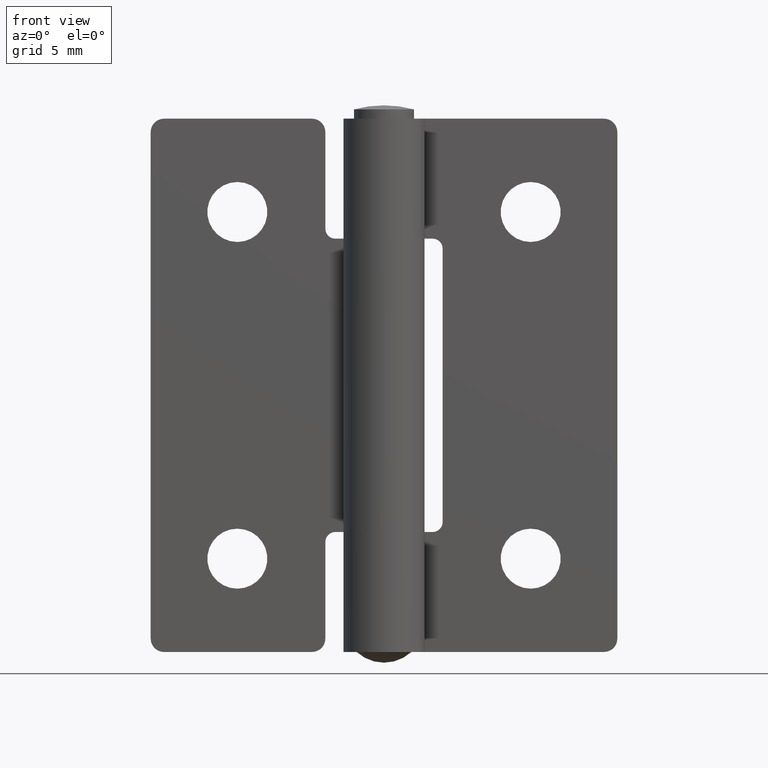
[diagram: clean part render]
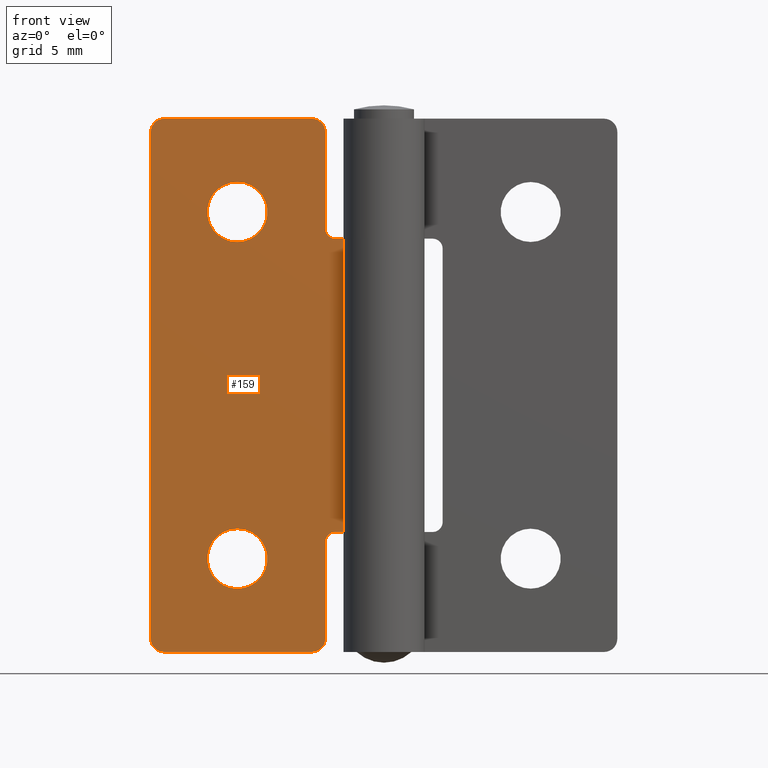
[diagram: same view with one face highlighted and labeled with its STEP entity id]
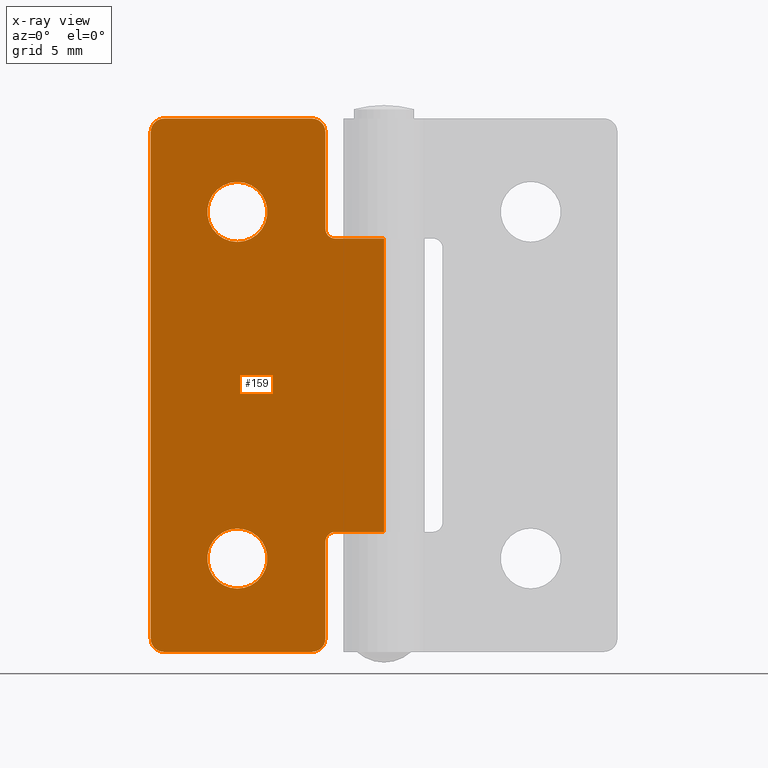
[diagram: x-ray of the same camera — body ghosted, the highlighted face saturated]
A machine part, front view. The second image highlights one B-rep face of the part: STEP entity #159.
The next image is the same camera in x-ray: the body ghosted, the highlighted face saturated — about 0% of this face is hidden behind the body in this view.
In plain terms, the highlighted planar face has unit normal (0, 1, 0).
Its self-contained STEP definition (entity closure, byte-faithful):
#159=ADVANCED_FACE('',(#309,#310,#311),#308,.F.);
#308=PLANE('',#841);
#309=FACE_OUTER_BOUND('',#842,.T.);
#310=FACE_BOUND('',#843,.T.);
#311=FACE_BOUND('',#844,.T.);
#838=CARTESIAN_POINT('',(-4.19922028826E+01,1.55000000000E+00,-3.19999963019E+00));
#839=DIRECTION('',(0.00000000000E+00,1.00000000000E+00,-0.00000000000E+00));
#840=DIRECTION('',(0.00000000000E+00,0.00000000000E+00,1.00000000000E+00));
#841=AXIS2_PLACEMENT_3D('',#838,#839,#840);
#842=EDGE_LOOP('',(#1117,#1118,#1119,#1120,#1121,#1122,#1123,#1124,#1125,#1126,#1127,#1128,#1129,#1130));
#843=EDGE_LOOP('',(#1131,#1132));
#844=EDGE_LOOP('',(#1133,#1134));
#1117=ORIENTED_EDGE('',*,*,#1393,.F.);
#1118=ORIENTED_EDGE('',*,*,#1394,.T.);
#1119=ORIENTED_EDGE('',*,*,#1395,.F.);
#1120=ORIENTED_EDGE('',*,*,#1396,.F.);
#1121=ORIENTED_EDGE('',*,*,#1397,.F.);
#1122=ORIENTED_EDGE('',*,*,#1398,.F.);
#1123=ORIENTED_EDGE('',*,*,#1399,.F.);
#1124=ORIENTED_EDGE('',*,*,#1400,.F.);
#1125=ORIENTED_EDGE('',*,*,#1401,.T.);
#1126=ORIENTED_EDGE('',*,*,#1402,.F.);
#1127=ORIENTED_EDGE('',*,*,#1403,.T.);
#1128=ORIENTED_EDGE('',*,*,#1404,.F.);
#1129=ORIENTED_EDGE('',*,*,#1405,.T.);
#1130=ORIENTED_EDGE('',*,*,#1406,.F.);
#1131=ORIENTED_EDGE('',*,*,#1407,.T.);
#1132=ORIENTED_EDGE('',*,*,#1408,.T.);
#1133=ORIENTED_EDGE('',*,*,#1409,.T.);
#1134=ORIENTED_EDGE('',*,*,#1410,.T.);
#1393=EDGE_CURVE('',#1642,#1643,#1644,.T.);
#1394=EDGE_CURVE('',#1642,#1650,#1651,.T.);
#1395=EDGE_CURVE('',#1657,#1650,#1658,.T.);
#1396=EDGE_CURVE('',#1664,#1657,#1665,.T.);
#1397=EDGE_CURVE('',#1671,#1664,#1672,.T.);
#1398=EDGE_CURVE('',#1678,#1671,#1679,.T.);
#1399=EDGE_CURVE('',#1685,#1678,#1686,.T.);
#1400=EDGE_CURVE('',#1692,#1685,#1693,.T.);
#1401=EDGE_CURVE('',#1692,#1699,#1700,.T.);
#1402=EDGE_CURVE('',#1706,#1699,#1707,.T.);
#1403=EDGE_CURVE('',#1706,#1713,#1714,.T.);
#1404=EDGE_CURVE('',#1720,#1713,#1721,.T.);
#1405=EDGE_CURVE('',#1720,#1727,#1728,.T.);
#1406=EDGE_CURVE('',#1643,#1727,#1734,.T.);
#1407=EDGE_CURVE('',#1740,#1741,#1742,.T.);
#1408=EDGE_CURVE('',#1741,#1740,#1748,.T.);
#1409=EDGE_CURVE('',#1754,#1755,#1756,.T.);
#1410=EDGE_CURVE('',#1755,#1754,#1762,.T.);
#1642=VERTEX_POINT('',#2574);
#1643=VERTEX_POINT('',#2575);
#1644=CIRCLE('',#2579,1.00000000000E+00);
#1650=VERTEX_POINT('',#2580);
#1651=LINE('',#2581,#2582);
#1657=VERTEX_POINT('',#2584);
#1658=CIRCLE('',#2588,1.00000000000E+00);
#1664=VERTEX_POINT('',#2589);
#1665=LINE('',#2590,#2591);
#1671=VERTEX_POINT('',#2593);
#1672=CIRCLE('',#2597,1.00000000000E+00);
#1678=VERTEX_POINT('',#2598);
#1679=LINE('',#2599,#2600);
#1685=VERTEX_POINT('',#2602);
#1686=CIRCLE('',#2606,1.00000000000E+00);
#1692=VERTEX_POINT('',#2607);
#1693=LINE('',#2608,#2609);
#1699=VERTEX_POINT('',#2611);
#1700=CIRCLE('',#2615,7.50000000000E-01);
#1706=VERTEX_POINT('',#2616);
#1707=LINE('',#2617,#2618);
#1713=VERTEX_POINT('',#2620);
#1714=LINE('',#2621,#2622);
#1720=VERTEX_POINT('',#2624);
#1721=LINE('',#2625,#2626);
#1727=VERTEX_POINT('',#2628);
#1728=CIRCLE('',#2632,7.50000000000E-01);
#1734=LINE('',#2633,#2634);
#1740=VERTEX_POINT('',#2636);
#1741=VERTEX_POINT('',#2637);
#1742=CIRCLE('',#2641,2.25000000000E+00);
#1748=CIRCLE('',#2645,2.25000000000E+00);
#1754=VERTEX_POINT('',#2646);
#1755=VERTEX_POINT('',#2647);
#1756=CIRCLE('',#2651,2.25000000000E+00);
#1762=CIRCLE('',#2655,2.25000000000E+00);
#2574=CARTESIAN_POINT('',(-2.81422028826E+01,1.55000000000E+00,4.08000003698E+01));
#2575=CARTESIAN_POINT('',(-2.71422028826E+01,1.55000000000E+00,3.98000003698E+01));
#2576=CARTESIAN_POINT('',(-2.81422028826E+01,1.55000000000E+00,3.98000003698E+01));
#2577=DIRECTION('',(0.00000000000E+00,1.00000000000E+00,-0.00000000000E+00));
#2578=DIRECTION('',(-0.00000000000E+00,-0.00000000000E+00,-1.00000000000E+00));
#2579=AXIS2_PLACEMENT_3D('',#2576,#2577,#2578);
#2580=CARTESIAN_POINT('',(-3.92422028826E+01,1.55000000000E+00,4.08000003698E+01));
#2581=CARTESIAN_POINT('',(-2.81422028826E+01,1.55000000000E+00,4.08000003698E+01));
#2582=VECTOR('',#2583,1.11000000000E+01);
#2583=DIRECTION('',(-1.00000000000E+00,0.00000000000E+00,0.00000000000E+00));
#2584=CARTESIAN_POINT('',(-4.02422028826E+01,1.55000000000E+00,3.98000003698E+01));
#2585=CARTESIAN_POINT('',(-3.92422028826E+01,1.55000000000E+00,3.98000003698E+01));
#2586=DIRECTION('',(0.00000000000E+00,1.00000000000E+00,-0.00000000000E+00));
#2587=DIRECTION('',(-0.00000000000E+00,-0.00000000000E+00,-1.00000000000E+00));
#2588=AXIS2_PLACEMENT_3D('',#2585,#2586,#2587);
#2589=CARTESIAN_POINT('',(-4.02422028826E+01,1.55000000000E+00,1.80000036981E+00));
#2590=CARTESIAN_POINT('',(-4.02422028826E+01,1.55000000000E+00,1.80000036981E+00));
#2591=VECTOR('',#2592,3.80000000000E+01);
#2592=DIRECTION('',(0.00000000000E+00,0.00000000000E+00,1.00000000000E+00));
#2593=CARTESIAN_POINT('',(-3.92422028826E+01,1.55000000000E+00,8.00000369808E-01));
#2594=CARTESIAN_POINT('',(-3.92422028826E+01,1.55000000000E+00,1.80000036981E+00));
#2595=DIRECTION('',(0.00000000000E+00,1.00000000000E+00,-0.00000000000E+00));
#2596=DIRECTION('',(-0.00000000000E+00,-0.00000000000E+00,-1.00000000000E+00));
#2597=AXIS2_PLACEMENT_3D('',#2594,#2595,#2596);
#2598=CARTESIAN_POINT('',(-2.81422028826E+01,1.55000000000E+00,8.00000369808E-01));
#2599=CARTESIAN_POINT('',(-2.81422028826E+01,1.55000000000E+00,8.00000369808E-01));
#2600=VECTOR('',#2601,1.11000000000E+01);
#2601=DIRECTION('',(-1.00000000000E+00,0.00000000000E+00,0.00000000000E+00));
#2602=CARTESIAN_POINT('',(-2.71422028826E+01,1.55000000000E+00,1.80000036981E+00));
#2603=CARTESIAN_POINT('',(-2.81422028826E+01,1.55000000000E+00,1.80000036981E+00));
#2604=DIRECTION('',(0.00000000000E+00,1.00000000000E+00,-0.00000000000E+00));
#2605=DIRECTION('',(-0.00000000000E+00,-0.00000000000E+00,-1.00000000000E+00));
#2606=AXIS2_PLACEMENT_3D('',#2603,#2604,#2605);
#2607=CARTESIAN_POINT('',(-2.71422028826E+01,1.55000000000E+00,9.05000036981E+00));
#2608=CARTESIAN_POINT('',(-2.71422028826E+01,1.55000000000E+00,9.05000036981E+00));
#2609=VECTOR('',#2610,7.25000000000E+00);
#2610=DIRECTION('',(0.00000000000E+00,0.00000000000E+00,-1.00000000000E+00));
#2611=CARTESIAN_POINT('',(-2.63922028826E+01,1.55000000000E+00,9.80000036981E+00));
#2612=CARTESIAN_POINT('',(-2.63922028826E+01,1.55000000000E+00,9.05000036981E+00));
#2613=DIRECTION('',(0.00000000000E+00,1.00000000000E+00,-0.00000000000E+00));
#2614=DIRECTION('',(-0.00000000000E+00,-0.00000000000E+00,-1.00000000000E+00));
#2615=AXIS2_PLACEMENT_3D('',#2612,#2613,#2614);
#2616=CARTESIAN_POINT('',(-2.27422028826E+01,1.55000000000E+00,9.80000036981E+00));
#2617=CARTESIAN_POINT('',(-2.27422028826E+01,1.55000000000E+00,9.80000036981E+00));
#2618=VECTOR('',#2619,3.65000000000E+00);
#2619=DIRECTION('',(-1.00000000000E+00,0.00000000000E+00,0.00000000000E+00));
#2620=CARTESIAN_POINT('',(-2.27422028826E+01,1.55000000000E+00,3.18000003698E+01));
#2621=CARTESIAN_POINT('',(-2.27422028826E+01,1.55000000000E+00,9.80000036981E+00));
#2622=VECTOR('',#2623,2.20000000000E+01);
#2623=DIRECTION('',(0.00000000000E+00,0.00000000000E+00,1.00000000000E+00));
#2624=CARTESIAN_POINT('',(-2.63922028826E+01,1.55000000000E+00,3.18000003698E+01));
#2625=CARTESIAN_POINT('',(-2.63922028826E+01,1.55000000000E+00,3.18000003698E+01));
#2626=VECTOR('',#2627,3.65000000000E+00);
#2627=DIRECTION('',(1.00000000000E+00,0.00000000000E+00,0.00000000000E+00));
#2628=CARTESIAN_POINT('',(-2.71422028826E+01,1.55000000000E+00,3.25500003698E+01));
#2629=CARTESIAN_POINT('',(-2.63922028826E+01,1.55000000000E+00,3.25500003698E+01));
#2630=DIRECTION('',(0.00000000000E+00,1.00000000000E+00,-0.00000000000E+00));
#2631=DIRECTION('',(-0.00000000000E+00,-0.00000000000E+00,-1.00000000000E+00));
#2632=AXIS2_PLACEMENT_3D('',#2629,#2630,#2631);
#2633=CARTESIAN_POINT('',(-2.71422028826E+01,1.55000000000E+00,3.98000003698E+01));
#2634=VECTOR('',#2635,7.25000000000E+00);
#2635=DIRECTION('',(0.00000000000E+00,0.00000000000E+00,-1.00000000000E+00));
#2636=CARTESIAN_POINT('',(-3.37422028826E+01,1.55000000000E+00,1.00500003698E+01));
#2637=CARTESIAN_POINT('',(-3.37422028826E+01,1.55000000000E+00,5.55000036981E+00));
#2638=CARTESIAN_POINT('',(-3.37422028826E+01,1.55000000000E+00,7.80000036981E+00));
#2639=DIRECTION('',(0.00000000000E+00,1.00000000000E+00,-0.00000000000E+00));
#2640=DIRECTION('',(-1.22460635382E-16,0.00000000000E+00,1.00000000000E+00));
#2641=AXIS2_PLACEMENT_3D('',#2638,#2639,#2640);
#2642=CARTESIAN_POINT('',(-3.37422028826E+01,1.55000000000E+00,7.80000036981E+00));
#2643=DIRECTION('',(0.00000000000E+00,1.00000000000E+00,-0.00000000000E+00));
#2644=DIRECTION('',(-1.22460635382E-16,0.00000000000E+00,1.00000000000E+00));
#2645=AXIS2_PLACEMENT_3D('',#2642,#2643,#2644);
#2646=CARTESIAN_POINT('',(-3.37422028826E+01,1.55000000000E+00,3.60500003698E+01));
#2647=CARTESIAN_POINT('',(-3.37422028826E+01,1.55000000000E+00,3.15500003698E+01));
#2648=CARTESIAN_POINT('',(-3.37422028826E+01,1.55000000000E+00,3.38000003698E+01));
#2649=DIRECTION('',(0.00000000000E+00,1.00000000000E+00,-0.00000000000E+00));
#2650=DIRECTION('',(-1.22460635382E-16,0.00000000000E+00,1.00000000000E+00));
#2651=AXIS2_PLACEMENT_3D('',#2648,#2649,#2650);
#2652=CARTESIAN_POINT('',(-3.37422028826E+01,1.55000000000E+00,3.38000003698E+01));
#2653=DIRECTION('',(0.00000000000E+00,1.00000000000E+00,-0.00000000000E+00));
#2654=DIRECTION('',(-1.22460635382E-16,0.00000000000E+00,1.00000000000E+00));
#2655=AXIS2_PLACEMENT_3D('',#2652,#2653,#2654);